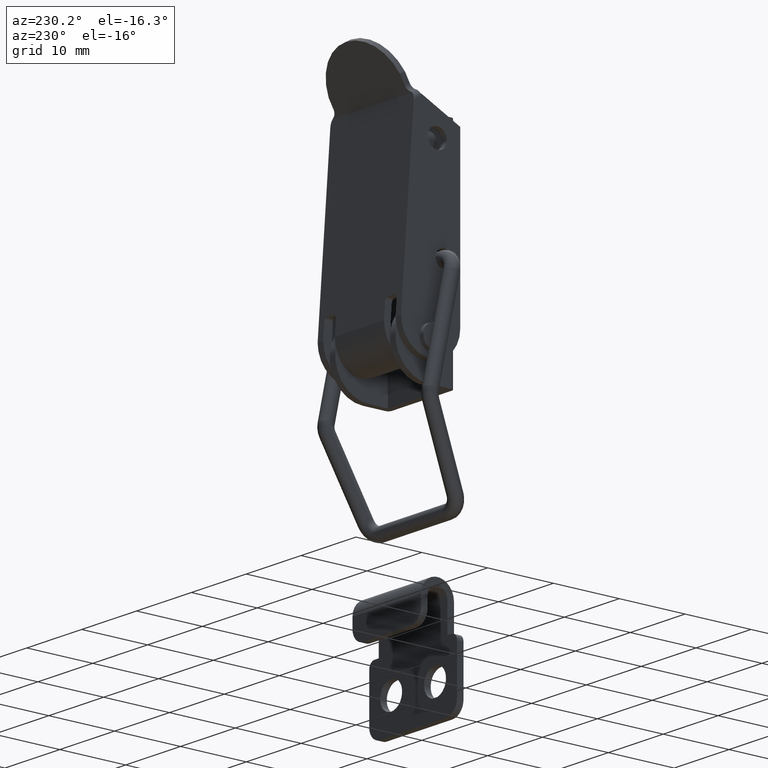
[diagram: clean part render]
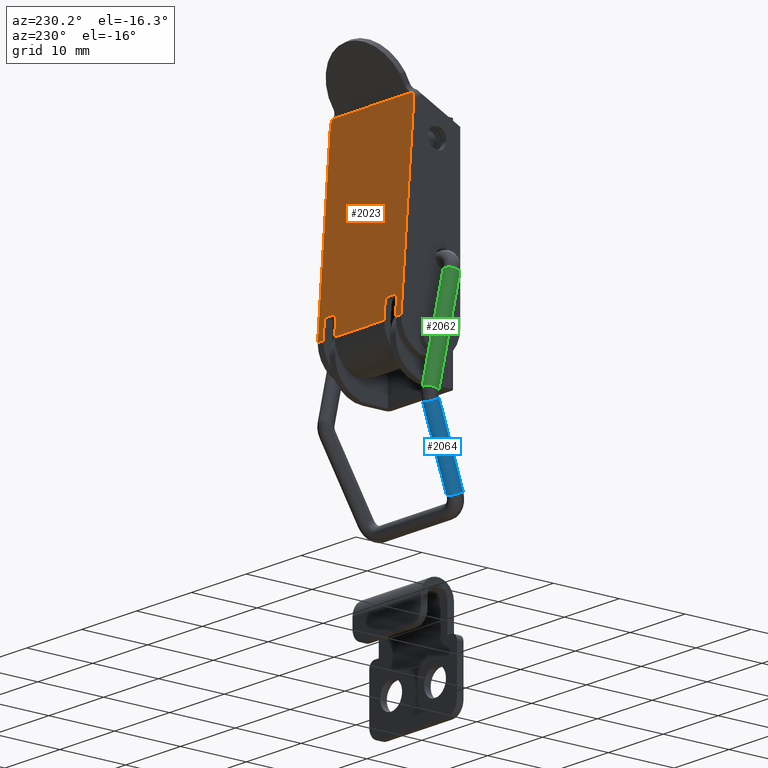
[diagram: same view with three faces highlighted in distinct colors, each labeled with its STEP entity id]
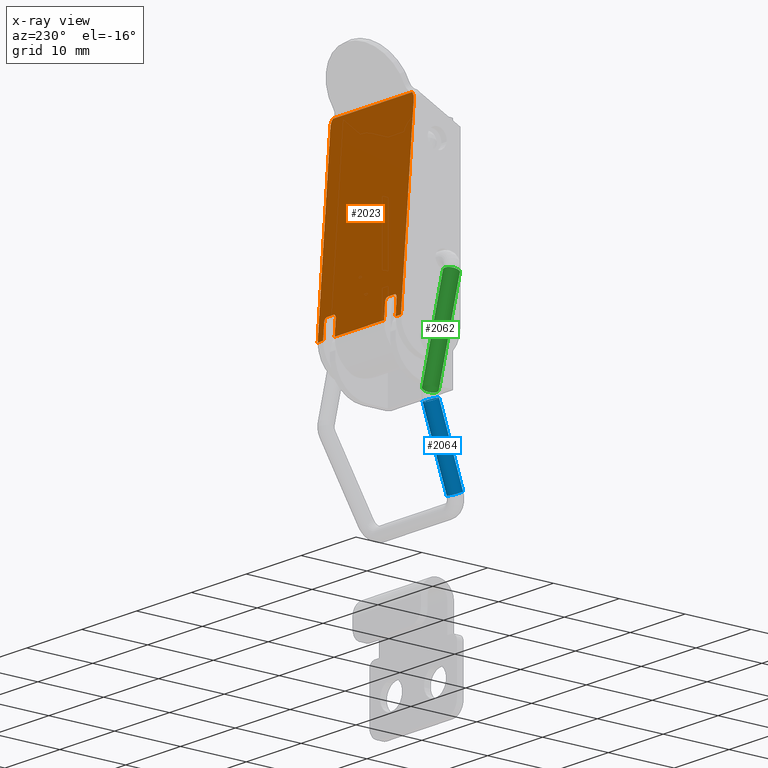
[diagram: x-ray of the same camera — body ghosted, the three highlighted faces saturated]
A machine part, auxiliary view with three faces highlighted in distinct colors.
The next image is the same camera in x-ray (body ghosted, the three faces saturated) — at least one of them is partly hidden behind the body in this view.
Their STEP definitions:

[orange] entity #2023 — the highlighted planar face has unit normal (-0, 0.9974, 0.0725).
#45=ELLIPSE('',#2186,1.20486537022442,1.);
#47=ELLIPSE('',#2194,1.20486537022442,1.);
#88=PLANE('',#2193);
#182=LINE('',#3225,#335);
#185=LINE('',#3239,#338);
#186=LINE('',#3243,#339);
#187=LINE('',#3245,#340);
#188=LINE('',#3247,#341);
#189=LINE('',#3251,#342);
#190=LINE('',#3255,#343);
#191=LINE('',#3257,#344);
#192=LINE('',#3259,#345);
#193=LINE('',#3263,#346);
#194=LINE('',#3267,#347);
#195=LINE('',#3268,#348);
#335=VECTOR('',#2577,26.625538367128);
#338=VECTOR('',#2590,14.4363077608724);
#339=VECTOR('',#2593,26.625538367128);
#340=VECTOR('',#2594,1.);
#341=VECTOR('',#2595,2.32641063100469);
#342=VECTOR('',#2598,1.1);
#343=VECTOR('',#2601,2.32641063100469);
#344=VECTOR('',#2602,9.);
#345=VECTOR('',#2603,2.32641063100469);
#346=VECTOR('',#2606,1.1);
#347=VECTOR('',#2609,2.32641063100469);
#348=VECTOR('',#2610,0.999999999999999);
#528=FACE_OUTER_BOUND('',#666,.T.);
#666=EDGE_LOOP('',(#1571,#1572,#1573,#1574,#1575,#1576,#1577,#1578,#1579,
#1580,#1581,#1582,#1583,#1584,#1585,#1586,#1587,#1588));
#830=CIRCLE('',#2195,0.5);
#831=CIRCLE('',#2196,0.5);
#832=CIRCLE('',#2197,0.5);
#833=CIRCLE('',#2198,0.5);
#969=VERTEX_POINT('',#3216);
#970=VERTEX_POINT('',#3218);
#972=VERTEX_POINT('',#3224);
#978=VERTEX_POINT('',#3238);
#979=VERTEX_POINT('',#3240);
#980=VERTEX_POINT('',#3242);
#981=VERTEX_POINT('',#3244);
#982=VERTEX_POINT('',#3246);
#983=VERTEX_POINT('',#3248);
#984=VERTEX_POINT('',#3250);
#985=VERTEX_POINT('',#3252);
#986=VERTEX_POINT('',#3254);
#987=VERTEX_POINT('',#3256);
#988=VERTEX_POINT('',#3258);
#989=VERTEX_POINT('',#3260);
#990=VERTEX_POINT('',#3262);
#991=VERTEX_POINT('',#3264);
#992=VERTEX_POINT('',#3266);
#1195=EDGE_CURVE('',#969,#970,#45,.T.);
#1198=EDGE_CURVE('',#970,#972,#182,.T.);
#1205=EDGE_CURVE('',#978,#969,#185,.T.);
#1206=EDGE_CURVE('',#979,#978,#47,.T.);
#1207=EDGE_CURVE('',#980,#979,#186,.T.);
#1208=EDGE_CURVE('',#980,#981,#187,.T.);
#1209=EDGE_CURVE('',#981,#982,#188,.T.);
#1210=EDGE_CURVE('',#983,#982,#830,.T.);
#1211=EDGE_CURVE('',#983,#984,#189,.T.);
#1212=EDGE_CURVE('',#985,#984,#831,.T.);
#1213=EDGE_CURVE('',#985,#986,#190,.T.);
#1214=EDGE_CURVE('',#986,#987,#191,.T.);
#1215=EDGE_CURVE('',#987,#988,#192,.T.);
#1216=EDGE_CURVE('',#989,#988,#832,.T.);
#1217=EDGE_CURVE('',#989,#990,#193,.T.);
#1218=EDGE_CURVE('',#991,#990,#833,.T.);
#1219=EDGE_CURVE('',#991,#992,#194,.T.);
#1220=EDGE_CURVE('',#992,#972,#195,.T.);
#1571=ORIENTED_EDGE('',*,*,#1195,.F.);
#1572=ORIENTED_EDGE('',*,*,#1205,.F.);
#1573=ORIENTED_EDGE('',*,*,#1206,.F.);
#1574=ORIENTED_EDGE('',*,*,#1207,.F.);
#1575=ORIENTED_EDGE('',*,*,#1208,.T.);
#1576=ORIENTED_EDGE('',*,*,#1209,.T.);
#1577=ORIENTED_EDGE('',*,*,#1210,.F.);
#1578=ORIENTED_EDGE('',*,*,#1211,.T.);
#1579=ORIENTED_EDGE('',*,*,#1212,.F.);
#1580=ORIENTED_EDGE('',*,*,#1213,.T.);
#1581=ORIENTED_EDGE('',*,*,#1214,.T.);
#1582=ORIENTED_EDGE('',*,*,#1215,.T.);
#1583=ORIENTED_EDGE('',*,*,#1216,.F.);
#1584=ORIENTED_EDGE('',*,*,#1217,.T.);
#1585=ORIENTED_EDGE('',*,*,#1218,.F.);
#1586=ORIENTED_EDGE('',*,*,#1219,.T.);
#1587=ORIENTED_EDGE('',*,*,#1220,.T.);
#1588=ORIENTED_EDGE('',*,*,#1198,.F.);
#2023=ADVANCED_FACE('',(#528),#88,.T.);
#2186=AXIS2_PLACEMENT_3D('',#3219,#2570,#2571);
#2193=AXIS2_PLACEMENT_3D('',#3237,#2588,#2589);
#2194=AXIS2_PLACEMENT_3D('',#3241,#2591,#2592);
#2195=AXIS2_PLACEMENT_3D('',#3249,#2596,#2597);
#2196=AXIS2_PLACEMENT_3D('',#3253,#2599,#2600);
#2197=AXIS2_PLACEMENT_3D('',#3261,#2604,#2605);
#2198=AXIS2_PLACEMENT_3D('',#3265,#2607,#2608);
#2570=DIRECTION('center_axis',(0.,-0.997365816958794,-0.0725356957788214));
#2571=DIRECTION('ref_axis',(0.,0.0725356957788215,-0.997365816958794));
#2577=DIRECTION('',(0.,0.0725356957788214,-0.997365816958794));
#2588=DIRECTION('center_axis',(0.,0.997365816958794,0.0725356957788214));
#2589=DIRECTION('ref_axis',(0.,-0.0725356957788213,0.997365816958794));
#2590=DIRECTION('',(-1.,0.,0.));
#2591=DIRECTION('center_axis',(0.,-0.997365816958794,-0.0725356957788214));
#2592=DIRECTION('ref_axis',(0.,0.0725356957788215,-0.997365816958794));
#2593=DIRECTION('',(0.,-0.0725356957788214,0.997365816958794));
#2594=DIRECTION('',(-1.,0.,0.));
#2595=DIRECTION('',(-4.03376197022127E-16,-0.0725356957788214,0.997365816958794));
#2596=DIRECTION('center_axis',(0.,0.997365816958794,0.0725356957788214));
#2597=DIRECTION('ref_axis',(0.707106781186547,-0.051290482363289,0.705244132495224));
#2598=DIRECTION('',(-1.,-8.85054178450196E-19,1.21694949536902E-17));
#2599=DIRECTION('center_axis',(0.,0.997365816958794,0.0725356957788214));
#2600=DIRECTION('ref_axis',(-0.707106781186548,-0.0512904823632891,0.705244132495224));
#2601=DIRECTION('',(-1.2201636297099E-17,0.0725356957788214,-0.997365816958794));
#2602=DIRECTION('',(-1.,0.,0.));
#2603=DIRECTION('',(-1.43640051197611E-16,-0.0725356957788214,0.997365816958794));
#2604=DIRECTION('center_axis',(0.,0.997365816958794,0.0725356957788214));
#2605=DIRECTION('ref_axis',(0.707106781186548,-0.0512904823632891,0.705244132495224));
#2606=DIRECTION('',(-1.,-8.85054178450196E-19,1.21694949536902E-17));
#2607=DIRECTION('center_axis',(0.,0.997365816958794,0.0725356957788214));
#2608=DIRECTION('ref_axis',(-0.707106781186547,-0.051290482363289,0.705244132495225));
#2609=DIRECTION('',(2.93960063489739E-16,0.0725356957788214,-0.997365816958794));
#2610=DIRECTION('',(-1.,0.,0.));
#3216=CARTESIAN_POINT('',(-7.21815388043621,7.,27.5));
#3218=CARTESIAN_POINT('',(-7.6,7.06869804905467,26.5554018254984));
#3219=CARTESIAN_POINT('Origin',(-6.6,7.06869804905467,26.5554018254983));
#3224=CARTESIAN_POINT('',(-7.6,9.,0.));
#3225=CARTESIAN_POINT('',(-7.6,7.,27.5));
#3237=CARTESIAN_POINT('Origin',(0.,9.,-4.44089209850063E-15));
#3238=CARTESIAN_POINT('',(7.21815388043621,7.,27.5));
#3239=CARTESIAN_POINT('',(0.,7.,27.5));
#3240=CARTESIAN_POINT('',(7.6,7.06869804905467,26.5554018254984));
#3241=CARTESIAN_POINT('Origin',(6.6,7.06869804905467,26.5554018254983));
#3242=CARTESIAN_POINT('',(7.6,9.,0.));
#3243=CARTESIAN_POINT('',(7.6,7.,27.5));
#3244=CARTESIAN_POINT('',(6.6,9.,0.));
#3245=CARTESIAN_POINT('',(0.,9.,0.));
#3246=CARTESIAN_POINT('',(6.6,8.83125218621283,2.32028243957362));
#3247=CARTESIAN_POINT('',(6.6,8.89749216916171,1.40948267402651));
#3248=CARTESIAN_POINT('',(6.1,8.79498433832342,2.81896534805302));
#3249=CARTESIAN_POINT('Origin',(6.1,8.83125218621283,2.32028243957362));
#3250=CARTESIAN_POINT('',(5.,8.79498433832342,2.81896534805302));
#3251=CARTESIAN_POINT('',(2.25,8.79498433832342,2.81896534805302));
#3252=CARTESIAN_POINT('',(4.5,8.83125218621283,2.32028243957362));
#3253=CARTESIAN_POINT('Origin',(5.,8.83125218621283,2.32028243957362));
#3254=CARTESIAN_POINT('',(4.5,9.,0.));
#3255=CARTESIAN_POINT('',(4.5,9.09127247480903,-1.25499652862423));
#3256=CARTESIAN_POINT('',(-4.5,9.,0.));
#3257=CARTESIAN_POINT('',(0.,9.,0.));
#3258=CARTESIAN_POINT('',(-4.5,8.83125218621283,2.32028243957362));
#3259=CARTESIAN_POINT('',(-4.5,8.89749216916171,1.40948267402651));
#3260=CARTESIAN_POINT('',(-5.,8.79498433832342,2.81896534805302));
#3261=CARTESIAN_POINT('Origin',(-5.,8.83125218621283,2.32028243957362));
#3262=CARTESIAN_POINT('',(-6.1,8.79498433832342,2.81896534805302));
#3263=CARTESIAN_POINT('',(-3.3,8.79498433832342,2.81896534805302));
#3264=CARTESIAN_POINT('',(-6.6,8.83125218621283,2.32028243957362));
#3265=CARTESIAN_POINT('Origin',(-6.1,8.83125218621283,2.32028243957362));
#3266=CARTESIAN_POINT('',(-6.6,9.,0.));
#3267=CARTESIAN_POINT('',(-6.6,9.09127247480903,-1.25499652862423));
#3268=CARTESIAN_POINT('',(0.,9.,0.));

[blue] entity #2064 — the highlighted cylindrical surface (bore or boss wall) has radius 1 mm, axis along (-0.116, 0.4183, 0.9009).
#468=FACE_BOUND('',#727,.T.);
#569=FACE_OUTER_BOUND('',#726,.T.);
#726=EDGE_LOOP('',(#1775));
#727=EDGE_LOOP('',(#1776));
#866=CIRCLE('',#2273,1.);
#867=CIRCLE('',#2275,1.);
#1044=VERTEX_POINT('',#3485);
#1045=VERTEX_POINT('',#3488);
#1301=EDGE_CURVE('',#1044,#1044,#866,.T.);
#1302=EDGE_CURVE('',#1045,#1045,#867,.T.);
#1775=ORIENTED_EDGE('',*,*,#1301,.F.);
#1776=ORIENTED_EDGE('',*,*,#1302,.T.);
#1966=CYLINDRICAL_SURFACE('',#2274,1.);
#2064=ADVANCED_FACE('',(#569,#468),#1966,.T.);
#2273=AXIS2_PLACEMENT_3D('',#3486,#2802,#2803);
#2274=AXIS2_PLACEMENT_3D('',#3487,#2804,#2805);
#2275=AXIS2_PLACEMENT_3D('',#3489,#2806,#2807);
#2802=DIRECTION('center_axis',(0.793244100632762,-0.115999909375108,0.597752304751966));
#2803=DIRECTION('ref_axis',(0.115999909375109,0.992496292629495,0.0386669127507639));
#2804=DIRECTION('center_axis',(0.793244100632762,-0.115999909375106,0.597752304751966));
#2805=DIRECTION('ref_axis',(0.115999909375107,0.992496292629495,0.0386669127507626));
#2806=DIRECTION('center_axis',(0.793244100632762,-0.115999909375108,0.597752304751966));
#2807=DIRECTION('ref_axis',(0.115999909375108,0.992496292629495,0.038666912750764));
#3485=CARTESIAN_POINT('',(-18.6546988187187,-10.4137197538384,-0.444605657672555));
#3486=CARTESIAN_POINT('Origin',(-18.5386989093436,-9.4212234612089,-0.405938744921781));
#3487=CARTESIAN_POINT('Origin',(-27.5293187611318,-8.10648177299269,-7.18085674717136));
#3488=CARTESIAN_POINT('',(-27.6453186705069,-9.09897806562218,-7.21952365992213));
#3489=CARTESIAN_POINT('Origin',(-27.5293187611318,-8.10648177299269,-7.18085674717136));

[green] entity #2062 — the highlighted cylindrical surface (bore or boss wall) has radius 1 mm, axis along (0, -0.2095, 0.9778).
#466=FACE_BOUND('',#723,.T.);
#567=FACE_OUTER_BOUND('',#722,.T.);
#722=EDGE_LOOP('',(#1771));
#723=EDGE_LOOP('',(#1772));
#864=CIRCLE('',#2269,1.);
#865=CIRCLE('',#2271,1.);
#1042=VERTEX_POINT('',#3479);
#1043=VERTEX_POINT('',#3482);
#1299=EDGE_CURVE('',#1042,#1042,#864,.T.);
#1300=EDGE_CURVE('',#1043,#1043,#865,.T.);
#1771=ORIENTED_EDGE('',*,*,#1299,.F.);
#1772=ORIENTED_EDGE('',*,*,#1300,.T.);
#1965=CYLINDRICAL_SURFACE('',#2270,1.);
#2062=ADVANCED_FACE('',(#567,#466),#1965,.T.);
#2269=AXIS2_PLACEMENT_3D('',#3480,#2794,#2795);
#2270=AXIS2_PLACEMENT_3D('',#3481,#2796,#2797);
#2271=AXIS2_PLACEMENT_3D('',#3483,#2798,#2799);
#2794=DIRECTION('center_axis',(1.,-2.4008572907519E-15,1.11022302462516E-15));
#2795=DIRECTION('ref_axis',(2.46330733588706E-15,1.,-1.36609473733173E-15));
#2796=DIRECTION('center_axis',(1.,1.58052583366774E-16,1.11022302462511E-16));
#2797=DIRECTION('ref_axis',(-1.58052583366774E-16,1.,-1.36609473733173E-15));
#2798=DIRECTION('center_axis',(1.,-2.4008572907519E-15,1.11022302462516E-15));
#2799=DIRECTION('ref_axis',(2.46330733588706E-15,1.,-1.36609473733173E-15));
#3479=CARTESIAN_POINT('',(-1.99999999999995,-10.5,1.99502516036642E-14));
#3480=CARTESIAN_POINT('Origin',(-1.99999999999994,-9.50000000000001,2.39054211288913E-14));
#3481=CARTESIAN_POINT('Origin',(-17.32089137642,-9.50000000000002,2.22044604925031E-14));
#3482=CARTESIAN_POINT('',(-17.32089137642,-10.5,1.8249290967276E-14));
#3483=CARTESIAN_POINT('Origin',(-17.32089137642,-9.50000000000002,2.22044604925031E-14));